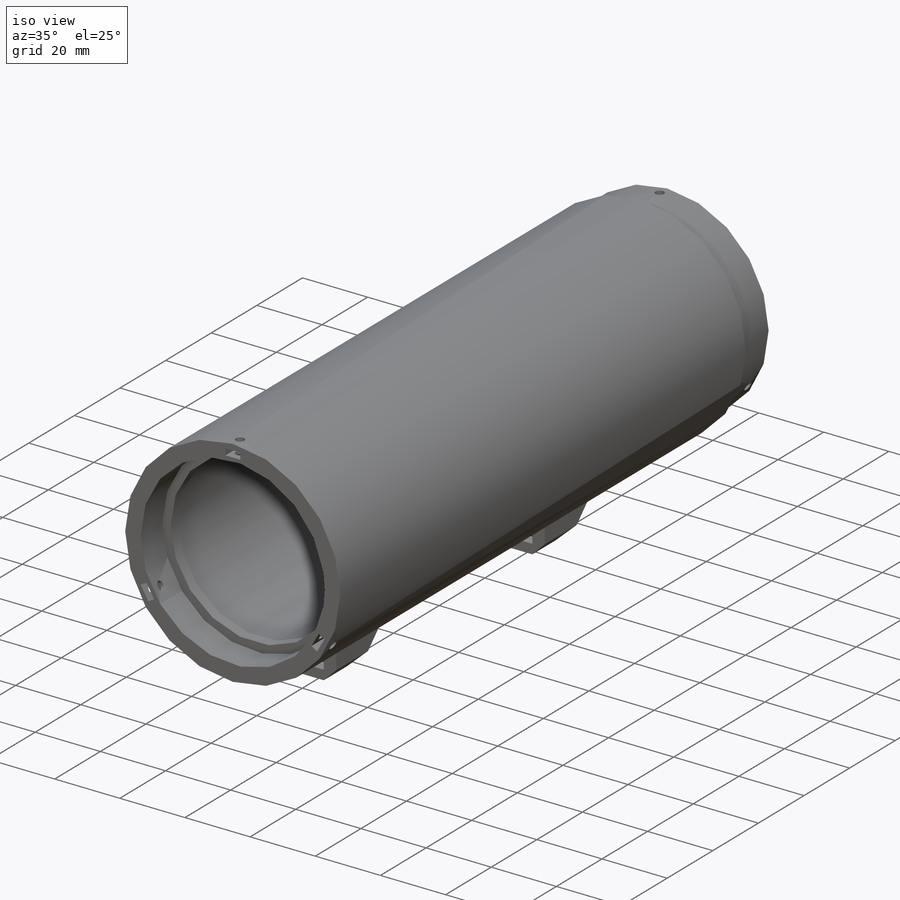
[diagram: iso view]
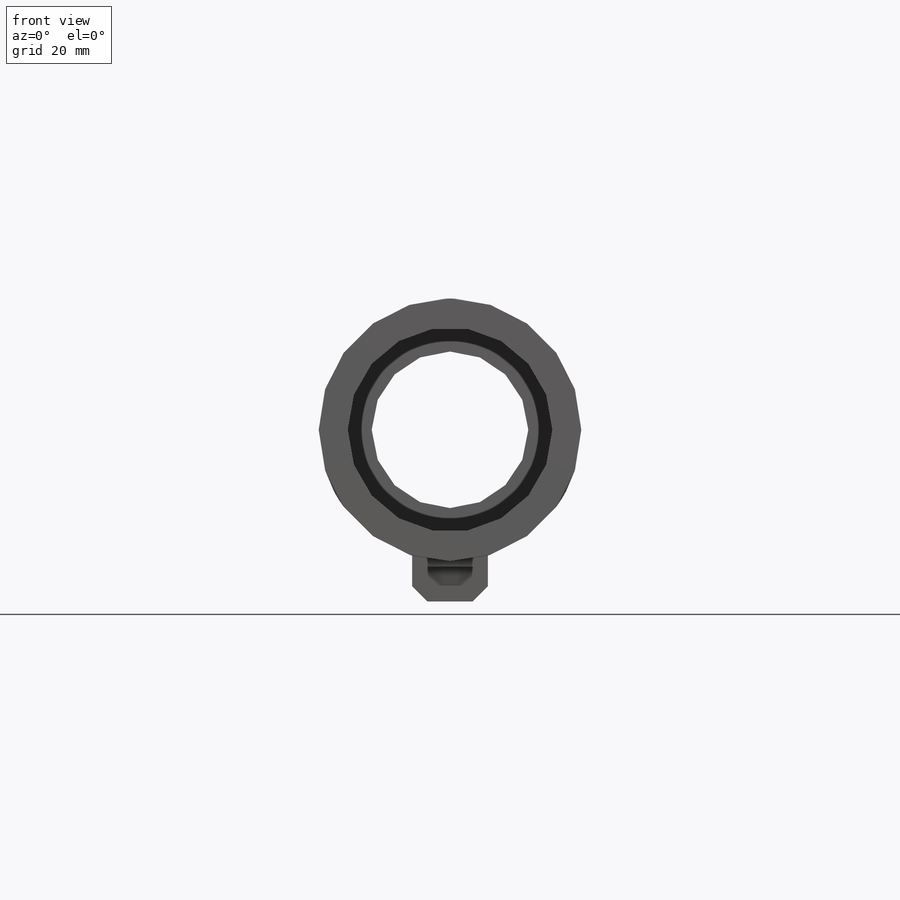
[diagram: front view]
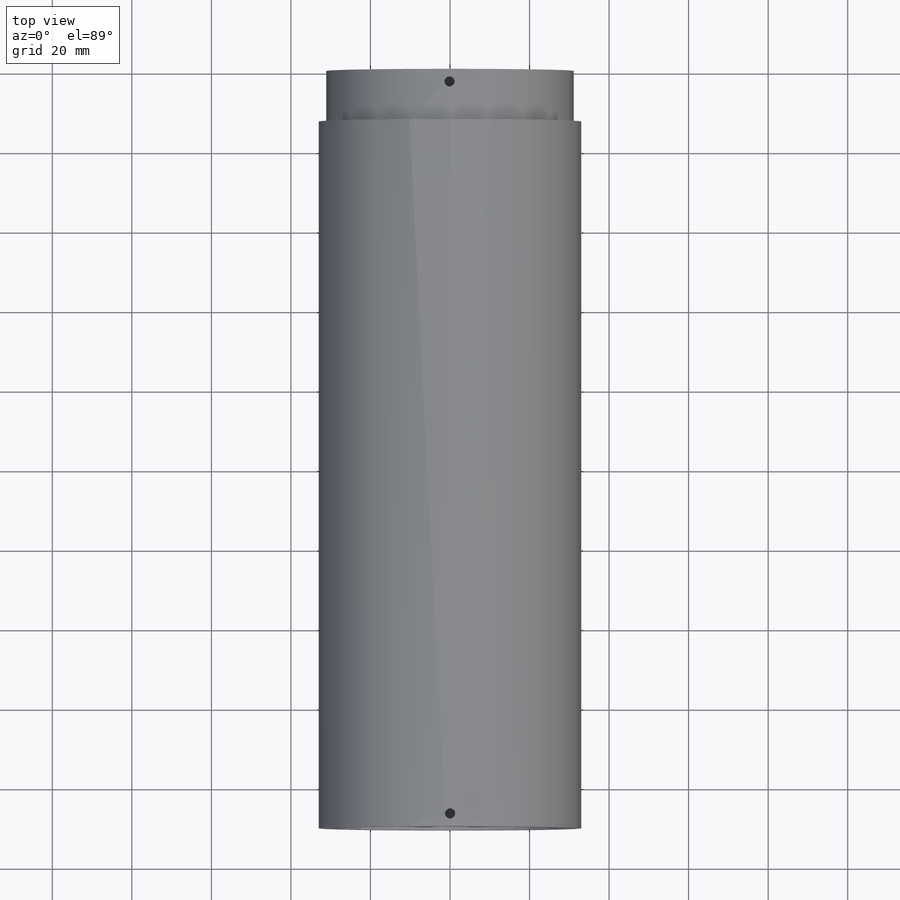
[diagram: top view]
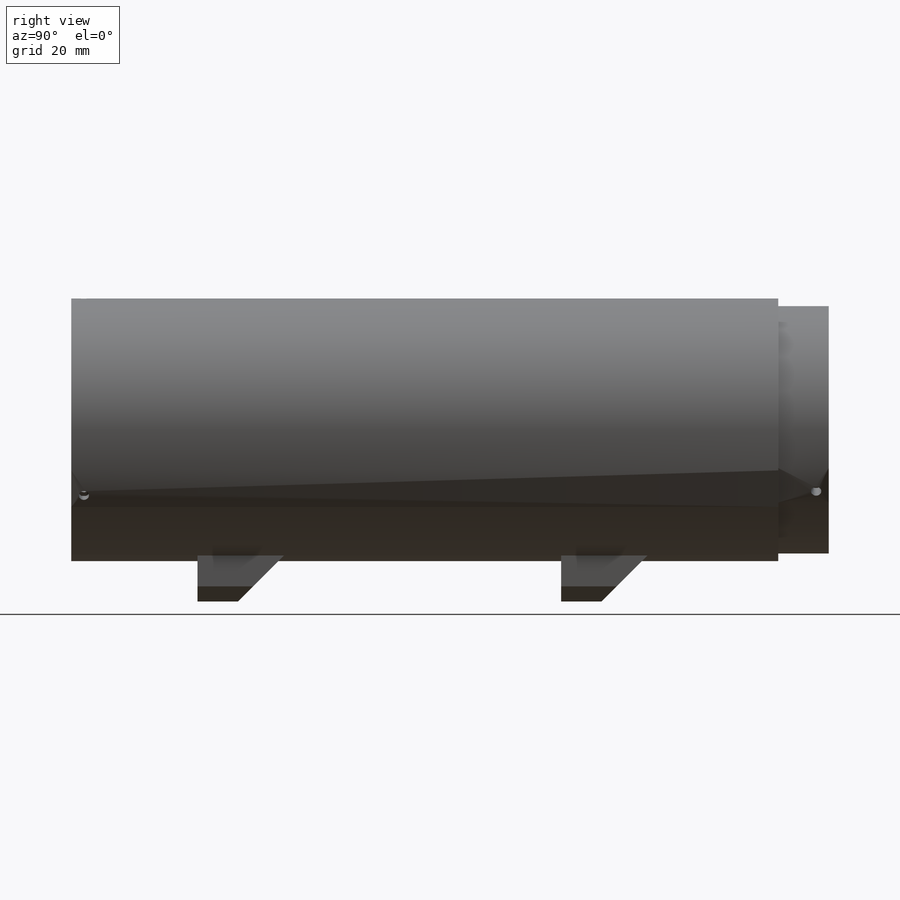
[diagram: right view]
SOLIDWORKS PART (.sldprt)
format: sldprt  version: not decoded by parser v0  size: 500,224 bytes
history: native  units: mm
features: sketch x17, cut_extrude x6, extrude x5, plane x4, hole x3, pattern_circular x3, chamfer x2, material x1 (+13 scaffold rows collapsed)
feature tree (54):
  scaffold x13  (default folders/planes/origin — collapsed)
  material  "Material <not specified>"
  sketch  "Sketch2"  dims[D1=46.99mm D2=7.62mm]
  extrude  "Boss-Extrude1"  Depth=12.7mm
  sketch  "Sketch3"  dims[c1.D1=~39.867685mm c1.D2=~47.487685mm c2.D1=3.81mm c2.D2=0.0mm]
  extrude  "Boss-Extrude2"  Depth=6.35mm
  plane  "Plane1"  Offset=31.115mm
  hole  "M2 Clearance Hole1"  Diameter=2.6mm Depth=62.229741mm
  sketch  "Sketch6"  dims[D1=3.175mm]
  sketch  "Sketch5"  dims[hole-wizard template sketch: 59 standard entries collapsed; hole parameters kept: c18.Thru Hole Dia.=2.6mm c18.Thru Hole Depth=~62.229741mm]
  pattern_circular  "CirPattern1"  Count=3 Angle=120deg
  sketch  "Sketch7"  dims[D1=1.905mm D2=4.572mm D3=25.4mm D4=1.016mm D5=3.556mm]
  cut_extrude  "Cut-Extrude1"  Depth=5.461mm
  pattern_circular  "CirPattern2"  Count=3 Angle=120deg
  sketch  "Sketch8"  dims[D1=66.04mm D2=3.175mm]
  extrude  "Boss-Extrude3"  Depth=177.8mm
  plane  "Plane3"  Offset=33.02mm
  hole  "M2 Clearance Hole2"  Diameter=2.6mm Depth=66.04mm
  sketch  "Sketch10"  dims[D1=3.175mm D2=33.02mm]
  sketch  "Sketch9"  dims[hole-wizard template sketch: 59 standard entries collapsed; hole parameters kept: c18.Thru Hole Dia.=2.6mm c18.Thru Hole Depth=66.04mm]
  sketch  "Sketch11"  dims[c1.D1=4.572mm c1.D2=2.032mm c1.D3=1.016mm c1.D4=0.956mm c1.D5=31.242mm c2.D3=0.956mm c2.D4=1.016mm]
  cut_extrude  "Cut-Extrude2"  Depth=5.461mm
  plane  "Plane4"  Offset=6.35mm
  sketch  "Sketch12"  dims[c1.D1=50.038mm c1.D2=39.37mm c2.D1=0.0mm c2.D2=2.54mm]
  extrude  "Boss-Extrude4"  Depth=6.35mm
  pattern_circular  "CirPattern3"  Count=3 Angle=120deg
  sketch  "Sketch13"
  cut_extrude  "Cut-Extrude4"  Depth=177.8mm
  sketch  "Sketch14"  dims[c1.D1=~47.72433mm c1.D2=57.15mm c2.D1=0.0mm c2.D2=0.0mm]
  cut_extrude  "Cut-Extrude5"  Depth=3.175mm
  plane  "Plane5"  Offset=30.48mm
  sketch  "Sketch15"  dims[D1=19.05mm D2=19.05mm D3=22.86mm D4=22.86mm D5=9.525mm D6=9.525mm D7=31.75mm D8=31.75mm]
  extrude  "Boss-Extrude5"  Depth=12.7mm
  hole  "1/4 Clearance Hole1"  Diameter=7.14248mm Depth=12.7mm
  sketch  "Sketch17"  dims[c1.D1=5.08mm c1.D2=9.525mm c1.D3=5.08mm c1.D4=9.525mm c2.D3=5.08mm]
  sketch  "Sketch16"  dims[hole-wizard template sketch: 47 standard entries collapsed; hole parameters kept: c15.Hole Depth=12.7mm c15.D3=~14.816244mm c15.Drill Angle=180.0deg]
  sketch  "Sketch18"  dims[D1=5.842mm D2=11.43mm D3=3.81mm D4=2.921mm]
  cut_extrude  "Cut-Extrude6"  Depth=11.43mm
  chamfer  "Chamfer2"  Distance=3.81mm Angle=45deg
  chamfer  "Chamfer3"  Distance=12.7mm Angle=45deg
  sketch  "Sketch19"
  cut_extrude  "Cut-Extrude7"  Depth=11.43mm
decode coverage: 34 of 36 modeling features carry decoded parameters
note: ~ marks probable driven/reference dimensions
note: suppression state not decoded; provenance and decode notes live in map.json
